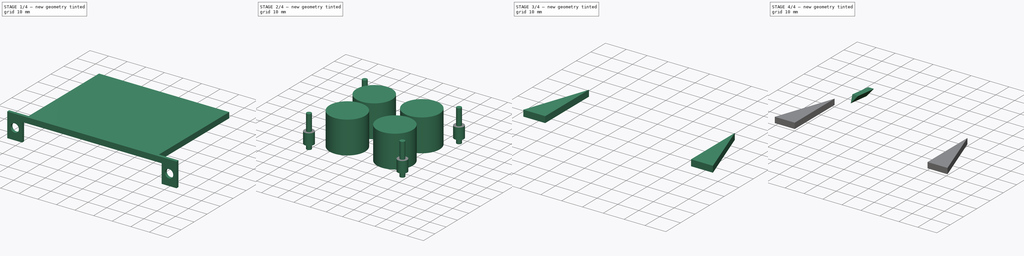
[diagram: build sequence overview — one tinted view per stage of 4, left to right]
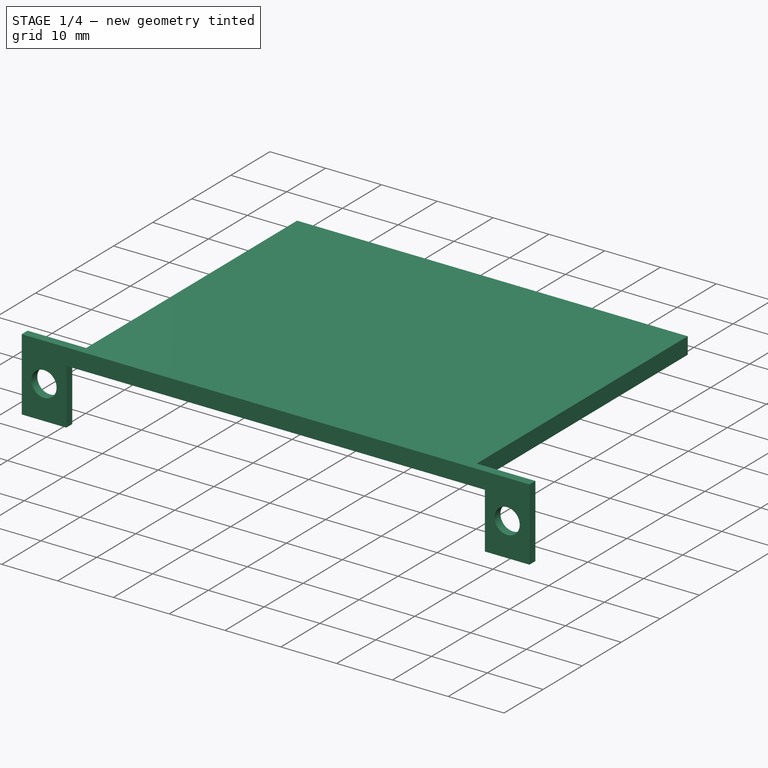
[diagram: stage 1 of 4 — iso view after this stage's code; geometry added in this stage tinted green]
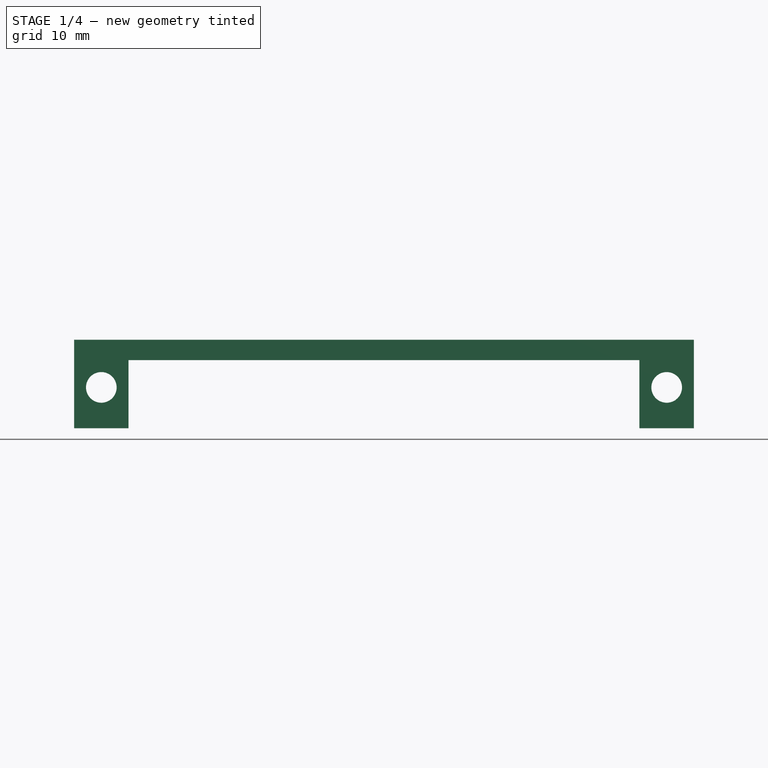
[diagram: stage 1 of 4 — front view after this stage's code; geometry added in this stage tinted green]
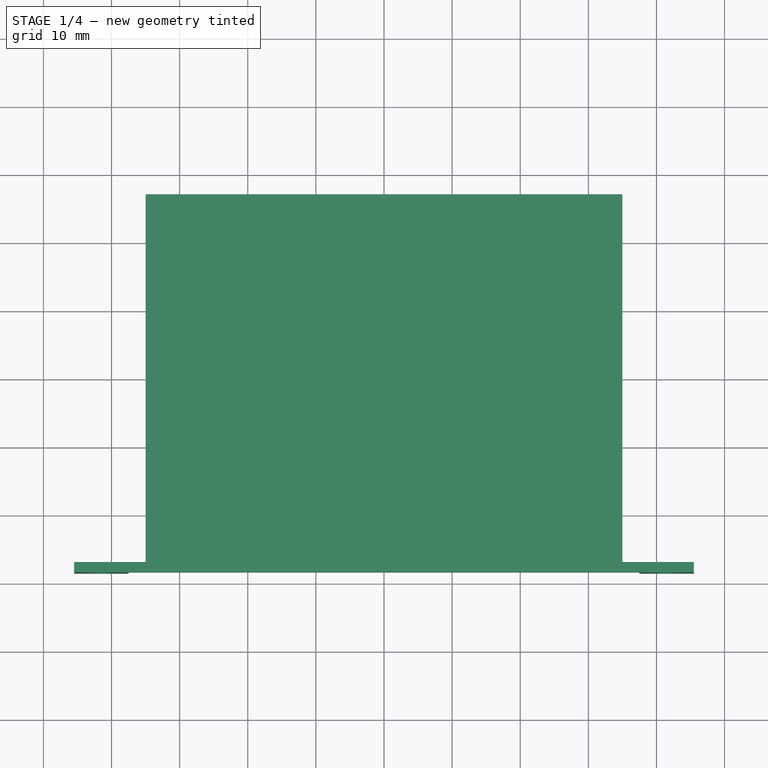
[diagram: stage 1 of 4 — top view after this stage's code; geometry added in this stage tinted green]
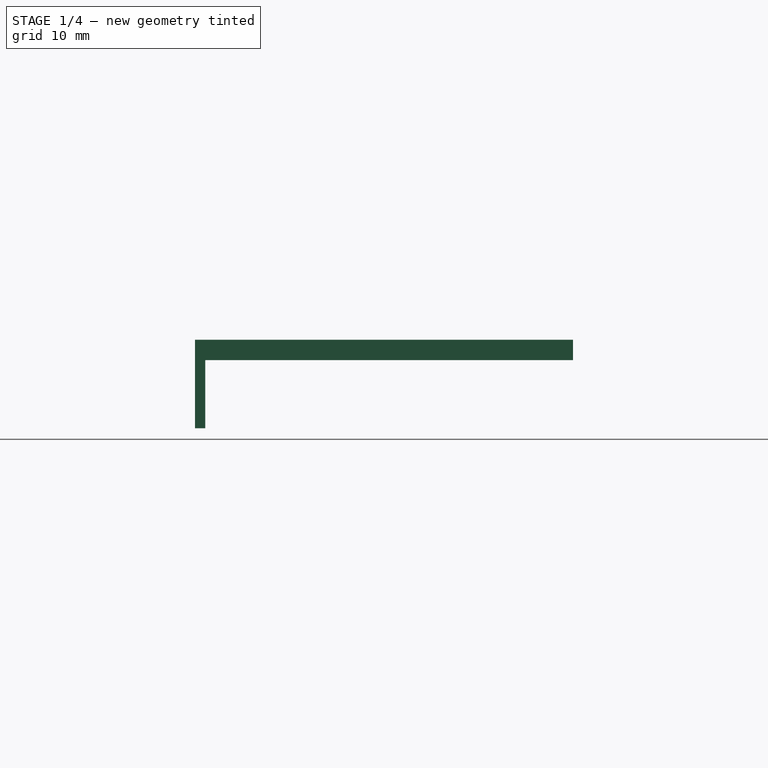
[diagram: stage 1 of 4 — right view after this stage's code; geometry added in this stage tinted green]
FCSTD DOCUMENT  (FreeCAD 0.20R29177 +426 (Git))
Label: 2023.05.12_RedPhone
License: All rights reserved
LicenseURL: http://en.wikipedia.org/wiki/All_rights_reserved
objects: Sketcher::SketchObject×7, Part::Extrusion×7, Part::MultiFuse×1, Part::Cut×1
note: 16 computed .brp shape members not serialized (recipe doc carries the construction recipe); baked Part::Feature solids carry a one-line shape summary decoded from their .brp

FEATURE [Sketcher::SketchObject] Sketch  label="Base_Sketch"
  FullyConstrained = true
  sketch-geometry (4):
    g0: LineSegment StartX=-35 StartY=27 StartZ=0 EndX=35 EndY=27 EndZ=0
    g1: LineSegment StartX=35 StartY=27 StartZ=0 EndX=35 EndY=-27 EndZ=0
    g2: LineSegment StartX=35 StartY=-27 StartZ=0 EndX=-35 EndY=-27 EndZ=0
    g3: LineSegment StartX=-35 StartY=-27 StartZ=0 EndX=-35 EndY=27 EndZ=0
  constraints (11):
    c: Coincident(g0,g1)
    c: Coincident(g1,g2)
    c: Coincident(g2,g3)
    c: Coincident(g3,g0)
    c: Horizontal(g0)
    c: Horizontal(g2)
    c: Vertical(g1)
    c: Vertical(g3)
    c: DistanceX(g2,g2) = 70
    c: DistanceY(g1,g1) = 54
    c: Symmetric(g0,g1,g-1)
FEATURE [Part::Extrusion] Extrude
  Base = -> Sketch
  Dir = (0,0,1)
  DirMode = 2
  FaceMakerClass = Part::FaceMakerBullseye
  LengthFwd = 3
  LengthRev = 0
  Solid = true
  Symmetric = false
FEATURE [Sketcher::SketchObject] Sketch003  label="FixationToScrewsSketch"
  ExternalGeometry = -> [Sketch]
  FullyConstrained = true
  MapMode = 5
  Placement = pos=(0,-27,0) rot=(1,0,0;1.5708rad)
  sketch-geometry (10):
    g0: LineSegment StartX=-45.5 StartY=3 StartZ=0 EndX=45.5 EndY=3 EndZ=0
    g1: LineSegment StartX=45.5 StartY=3 StartZ=0 EndX=45.5 EndY=-10 EndZ=0
    g2: LineSegment StartX=45.5 StartY=-10 StartZ=0 EndX=37.5 EndY=-10 EndZ=0
    g3: LineSegment StartX=37.5 StartY=-10 StartZ=0 EndX=37.5 EndY=0 EndZ=0
    g4: LineSegment StartX=37.5 StartY=0 StartZ=0 EndX=-37.5 EndY=0 EndZ=0
    g5: LineSegment StartX=-37.5 StartY=0 StartZ=0 EndX=-37.5 EndY=-10 EndZ=0
    g6: LineSegment StartX=-37.5 StartY=-10 StartZ=0 EndX=-45.5 EndY=-10 EndZ=0
    g7: LineSegment StartX=-45.5 StartY=-10 StartZ=0 EndX=-45.5 EndY=3 EndZ=0
    g8: Circle CenterX=41.5 CenterY=-4 CenterZ=0 NormalX=0 NormalY=0 NormalZ=1 AngleXU=0 Radius=2.25
    g9: Circle CenterX=-41.5 CenterY=-4 CenterZ=0 NormalX=0 NormalY=0 NormalZ=1 AngleXU=0 Radius=2.25
  constraints (28):
    c: Horizontal(g0)
    c: Coincident(g0,g1)
    c: Vertical(g1)
    c: Coincident(g1,g2)
    c: Coincident(g2,g3)
    c: Vertical(g3)
    c: Coincident(g3,g4)
    c: Horizontal(g4)
    c: Coincident(g4,g5)
    c: Vertical(g5)
    c: Coincident(g5,g6)
    c: Horizontal(g6)
    c: Coincident(g6,g7)
    c: Coincident(g7,g0)
    c: Vertical(g7)
    c: Horizontal(g2)
    c: DistanceX(g6,g6) = 8
    c: Equal(g6,g2)
    c: DistanceX(g4,g4) = 75
    c: DistanceY(g5,g5) = 10
    c: DistanceY(g3,g0) = 3
    c: DistanceY(g-3,g4) = 0
    c: Diameter(g8) = 4.5
    c: Equal(g8,g9)
    c: DistanceX(g9,g8) = 83
    c: Symmetric(g8,g9,g-2)
    c: DistanceY(g9,g4) = 4
    c: Symmetric(g2,g5,g-2)
FEATURE [Part::Extrusion] Extrude003
  Base = -> Sketch003
  Dir = (0,-1,2e-16)
  DirMode = 2
  FaceMakerClass = Part::FaceMakerBullseye
  LengthFwd = 1.5
  LengthRev = 0
  Solid = true
  Symmetric = false
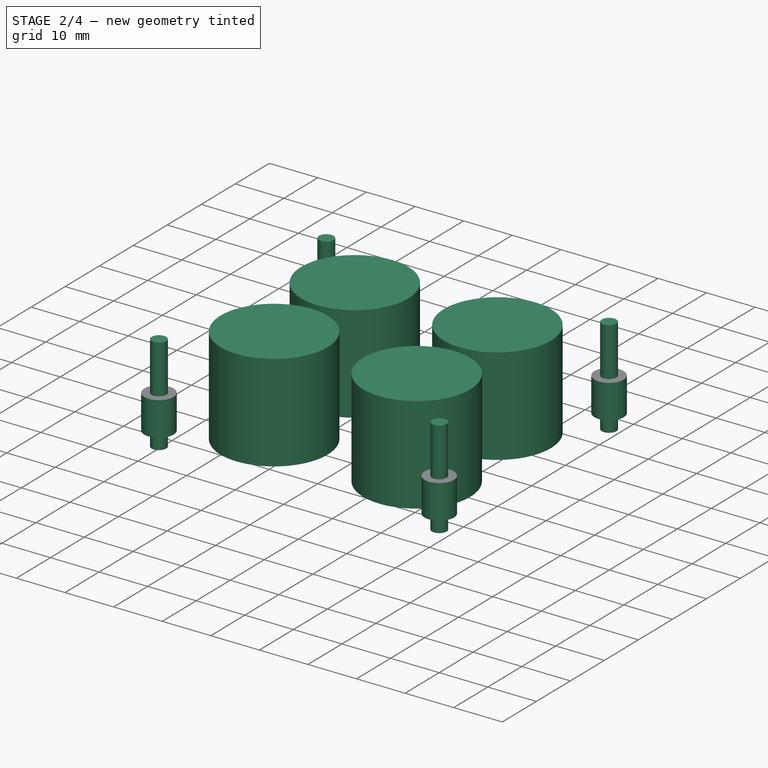
[diagram: stage 2 of 4 — iso view after this stage's code; geometry added in this stage tinted green]
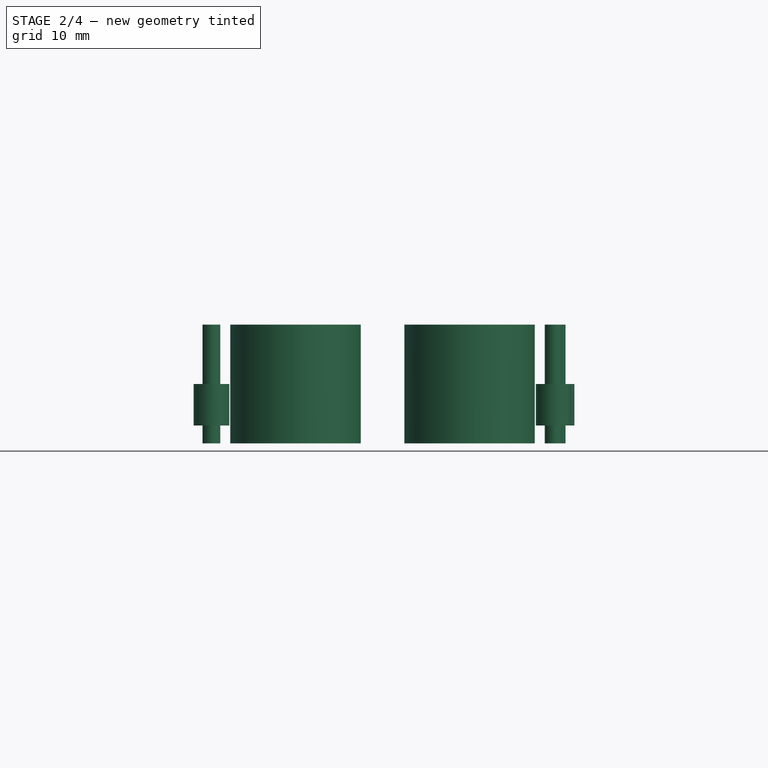
[diagram: stage 2 of 4 — front view after this stage's code; geometry added in this stage tinted green]
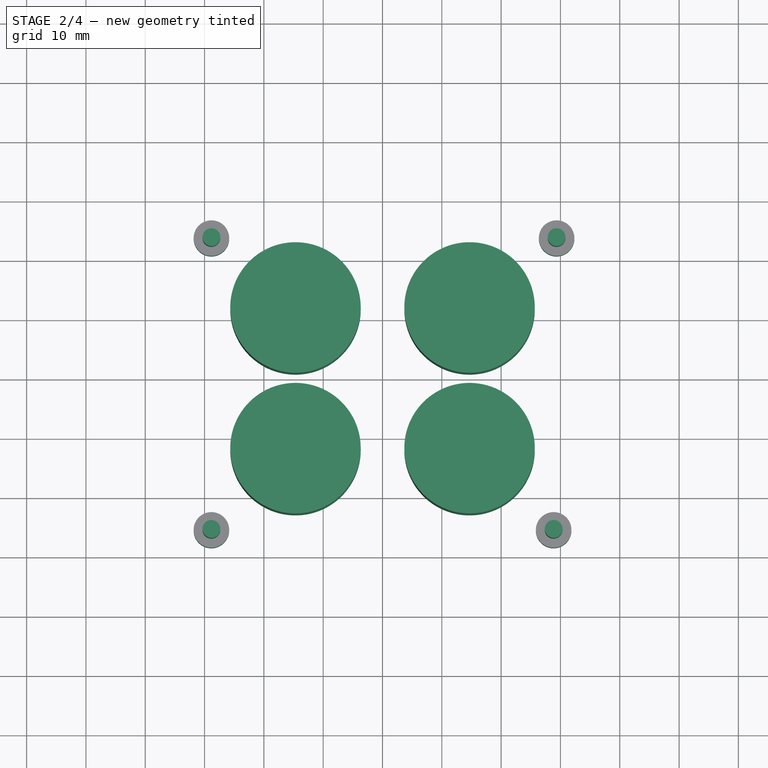
[diagram: stage 2 of 4 — top view after this stage's code; geometry added in this stage tinted green]
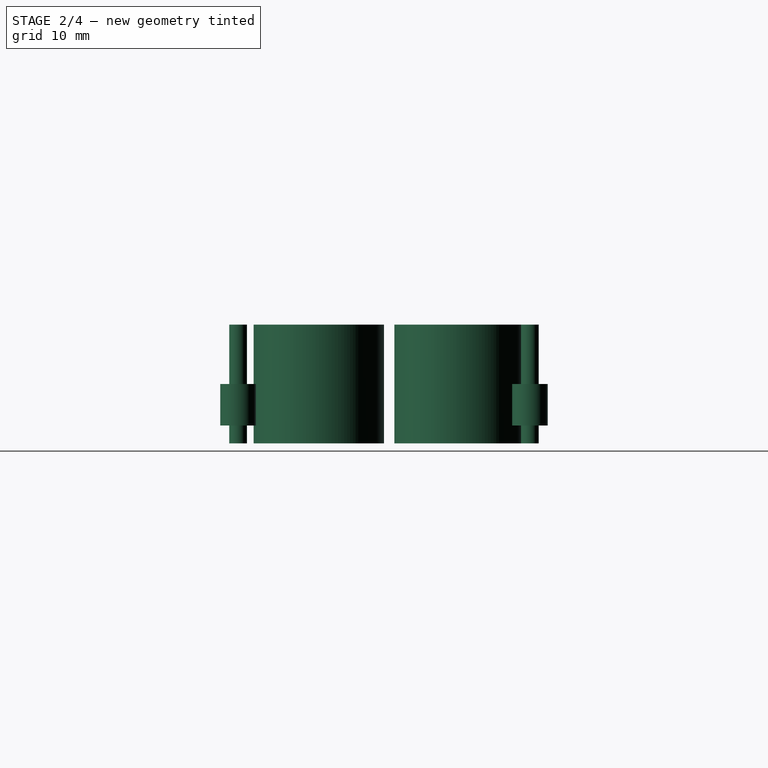
[diagram: stage 2 of 4 — right view after this stage's code; geometry added in this stage tinted green]
FEATURE [Sketcher::SketchObject] Sketch001  label="BoardSupports_Sketch"
  ExternalGeometry = -> [Extrude,Extrude003,Sketch003]
  FullyConstrained = false
  MapMode = 2
  Support = -> [Extrude]
  sketch-geometry (4):
    g0: Circle CenterX=-28.85 CenterY=23.726 CenterZ=0 NormalX=0 NormalY=0 NormalZ=1 AngleXU=0 Radius=3
    g1: Circle CenterX=29.35 CenterY=23.726 CenterZ=0 NormalX=0 NormalY=0 NormalZ=1 AngleXU=0 Radius=3
    g2: Circle CenterX=-28.85 CenterY=-25.474 CenterZ=0 NormalX=0 NormalY=0 NormalZ=1 AngleXU=0 Radius=3
    g3: Circle CenterX=28.85 CenterY=-25.474 CenterZ=0 NormalX=0 NormalY=0 NormalZ=1 AngleXU=0 Radius=3
  constraints (10):
    c: Diameter(g0) = 6
    c: Equal(g1,g0)
    c: Equal(g2,g0)
    c: Equal(g0,g3)
    c: DistanceX(g0,g1) = 58.2
    c: DistanceX(g2,g3) = 57.7
    c: DistanceY(g1,g0) = 0
    c: DistanceX(g0,g2) = 0
    c: DistanceY(g3,g1) = 49.2
    c: Symmetric(g3,g2,g-2)
FEATURE [Part::Extrusion] Extrude001
  Base = -> Sketch001
  Dir = (0,0,1)
  DirMode = 2
  FaceMakerClass = Part::FaceMakerBullseye
  LengthFwd = 0
  LengthRev = 7
  Solid = true
  Symmetric = false
FEATURE [Part::Extrusion] Extrude002
  Base = -> Sketch002
  Dir = (0,0,-1)
  DirMode = 2
  FaceMakerClass = Part::FaceMakerBullseye
  LengthFwd = 10
  LengthRev = 10
  Solid = true
  Symmetric = false
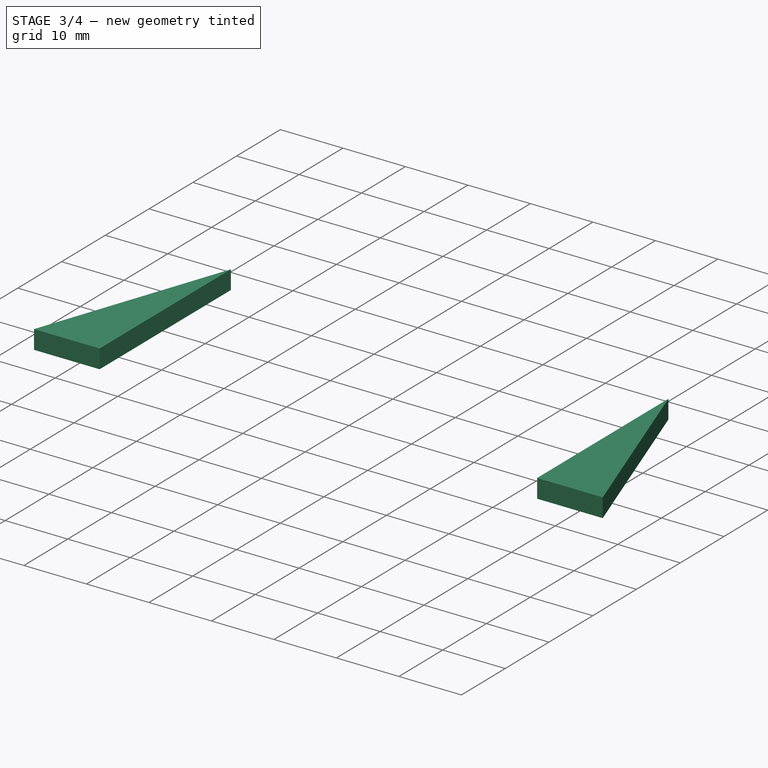
[diagram: stage 3 of 4 — iso view after this stage's code; geometry added in this stage tinted green]
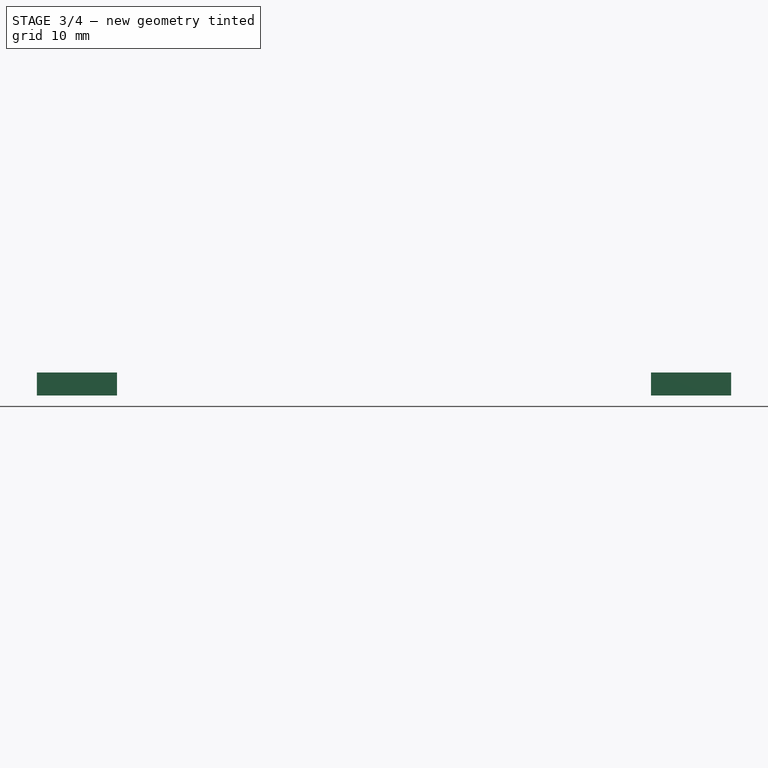
[diagram: stage 3 of 4 — front view after this stage's code; geometry added in this stage tinted green]
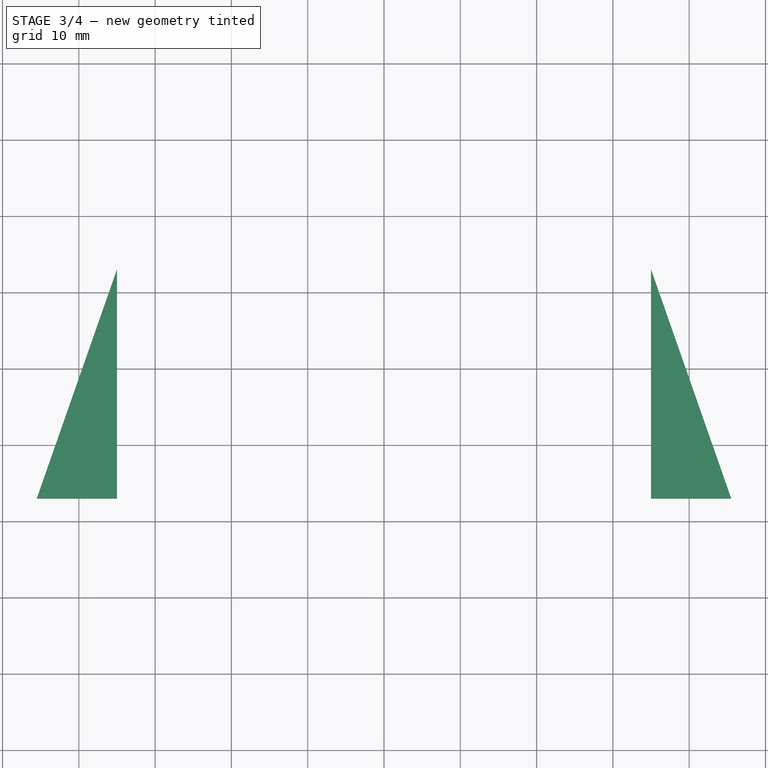
[diagram: stage 3 of 4 — top view after this stage's code; geometry added in this stage tinted green]
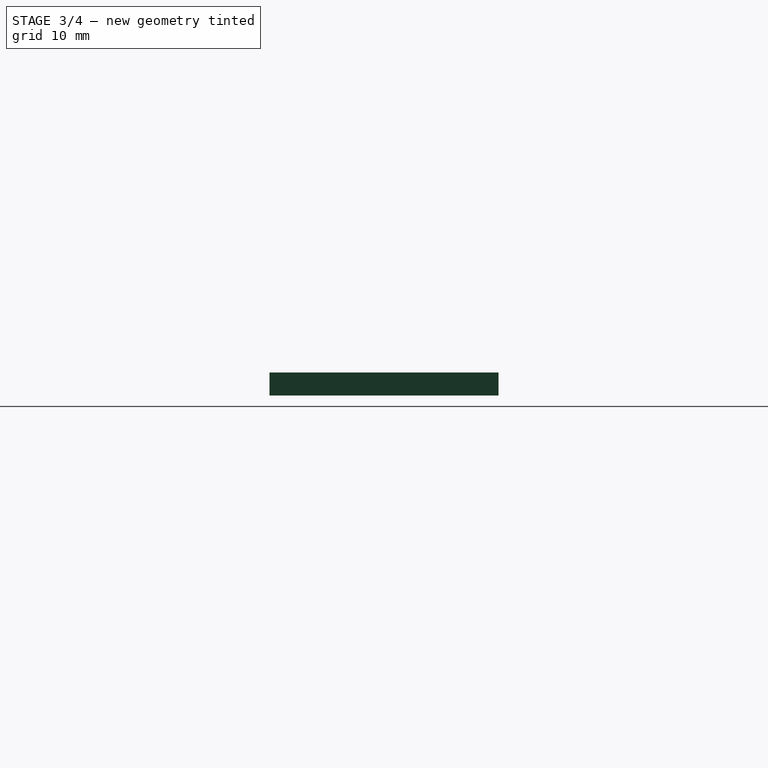
[diagram: stage 3 of 4 — right view after this stage's code; geometry added in this stage tinted green]
FEATURE [Sketcher::SketchObject] Sketch002  label="BoardSupportHoles_Sketch"
  ExternalGeometry = -> [Sketch001]
  FullyConstrained = true
  MapMode = 5
  Placement = pos=(0,0,0) rot=(1,0,0;3.14159rad)
  Support = -> [Extrude]
  sketch-geometry (8):
    g0: Circle CenterX=-28.85 CenterY=25.474 CenterZ=0 NormalX=0 NormalY=0 NormalZ=1 AngleXU=0 Radius=1.5
    g1: Circle CenterX=28.85 CenterY=25.474 CenterZ=0 NormalX=0 NormalY=0 NormalZ=1 AngleXU=0 Radius=1.5
    g2: Circle CenterX=-28.85 CenterY=-23.726 CenterZ=0 NormalX=0 NormalY=0 NormalZ=1 AngleXU=0 Radius=1.5
    g3: Circle CenterX=29.35 CenterY=-23.726 CenterZ=0 NormalX=0 NormalY=0 NormalZ=1 AngleXU=0 Radius=1.5
    g4: Circle CenterX=-14.675 CenterY=11.863 CenterZ=0 NormalX=0 NormalY=0 NormalZ=1 AngleXU=0 Radius=11
    g5: Circle CenterX=-14.675 CenterY=-11.863 CenterZ=0 NormalX=0 NormalY=0 NormalZ=1 AngleXU=0 Radius=11
    g6: Circle CenterX=14.675 CenterY=11.863 CenterZ=0 NormalX=0 NormalY=0 NormalZ=1 AngleXU=0 Radius=11
    g7: Circle CenterX=14.675 CenterY=-11.863 CenterZ=0 NormalX=0 NormalY=0 NormalZ=1 AngleXU=0 Radius=11
  constraints (17):
    c: Diameter(g0) = 3
    c: Equal(g1,g2)
    c: Equal(g2,g3)
    c: Equal(g3,g0)
    c: Coincident(g0,g-3)
    c: Coincident(g1,g-4)
    c: Coincident(g2,g-6)
    c: Coincident(g3,g-5)
    c: Diameter(g4) = 22
    c: Equal(g7,g4)
    c: Equal(g4,g6)
    c: Equal(g6,g5)
    c: DistanceX(g4,g5) = 0
    c: DistanceY(g4,g6) = 0
    c: Symmetric(g4,g7,g-1)
    c: Symmetric(g5,g6,g-1)
    c: Symmetric(g-1,g3,g7)
FEATURE [Part::MultiFuse] Fusion
  Shapes = -> [Extrude,Extrude001]
FEATURE [Part::Cut] Cut
  Base = -> Fusion
  Tool = -> Extrude002
FEATURE [Sketcher::SketchObject] Sketch007  label="SideDiagonals_Sketch"
  ExternalGeometry = -> [Cut,Extrude003]
  FullyConstrained = true
  MapMode = 5
  Placement = pos=(0,0,3) rot=(0,0,1;0rad)
  Support = -> [Cut]
  sketch-geometry (6):
    g0: LineSegment StartX=-35 StartY=3 StartZ=0 EndX=-35 EndY=-27 EndZ=0
    g1: LineSegment StartX=-35 StartY=-27 StartZ=0 EndX=-45.5 EndY=-27 EndZ=0
    g2: LineSegment StartX=-45.5 StartY=-27 StartZ=0 EndX=-35 EndY=3 EndZ=0
    g3: LineSegment StartX=35 StartY=3 StartZ=0 EndX=35 EndY=-27 EndZ=0
    g4: LineSegment StartX=35 StartY=-27 StartZ=0 EndX=45.5 EndY=-27 EndZ=0
    g5: LineSegment StartX=45.5 StartY=-27 StartZ=0 EndX=35 EndY=3 EndZ=0
  constraints (14):
    c: Coincident(g0,g1)
    c: Coincident(g1,g2)
    c: Coincident(g2,g0)
    c: Coincident(g0,g-3)
    c: Coincident(g1,g-4)
    c: PointOnObject(g0,g-3)
    c: Distance(g0) = 30
    c: Coincident(g3,g4)
    c: Coincident(g4,g5)
    c: Coincident(g5,g3)
    c: Coincident(g3,g-5)
    c: Coincident(g4,g-4)
    c: PointOnObject(g3,g-5)
    c: Distance(g3) = 30
FEATURE [Part::Extrusion] Extrude011
  Base = -> Sketch007
  Dir = (0,0,1)
  DirMode = 2
  FaceMakerClass = Part::FaceMakerBullseye
  LengthFwd = 0
  LengthRev = 3
  Solid = true
  Symmetric = false
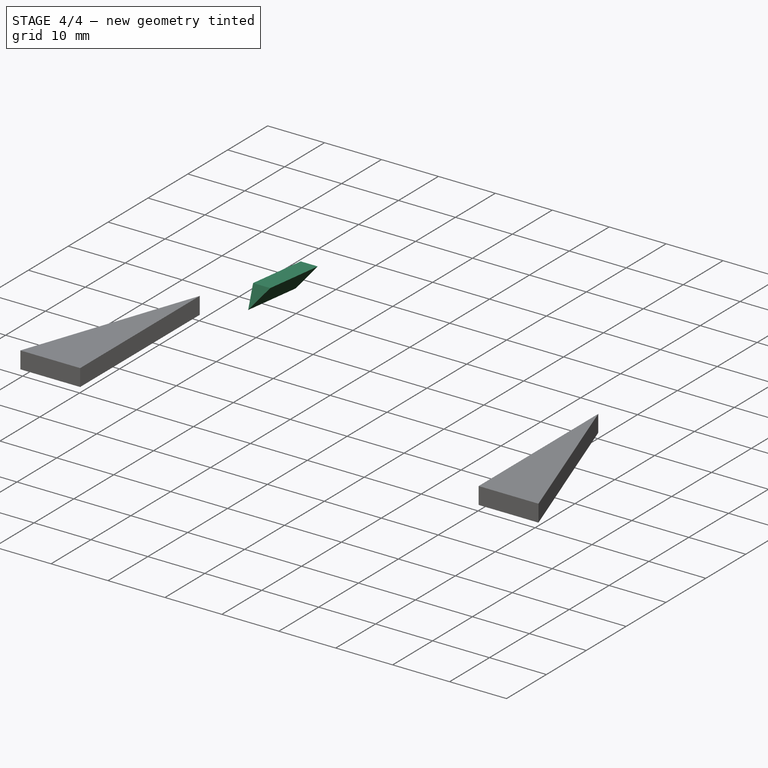
[diagram: stage 4 of 4 — iso view after this stage's code; geometry added in this stage tinted green]
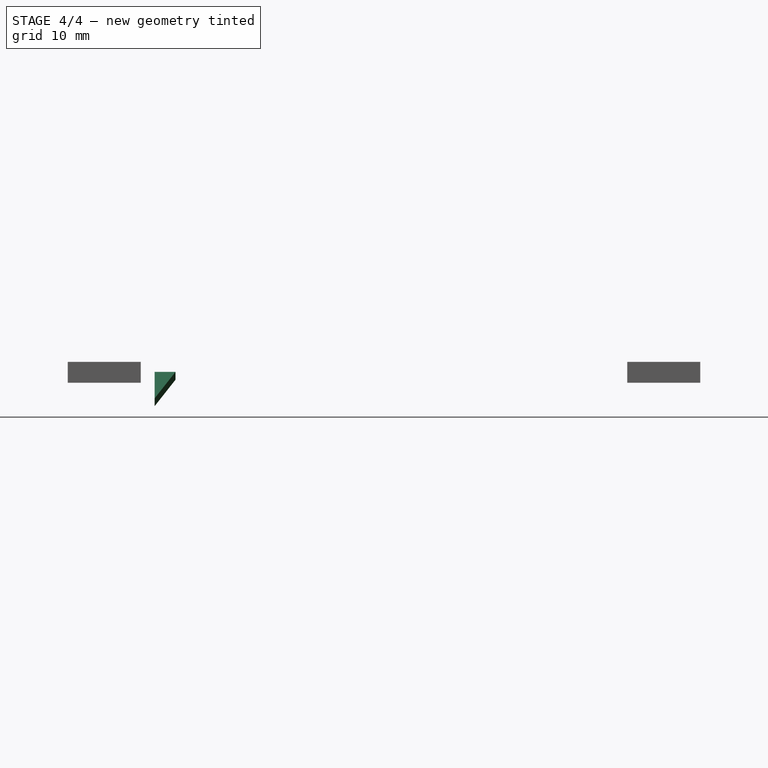
[diagram: stage 4 of 4 — front view after this stage's code; geometry added in this stage tinted green]
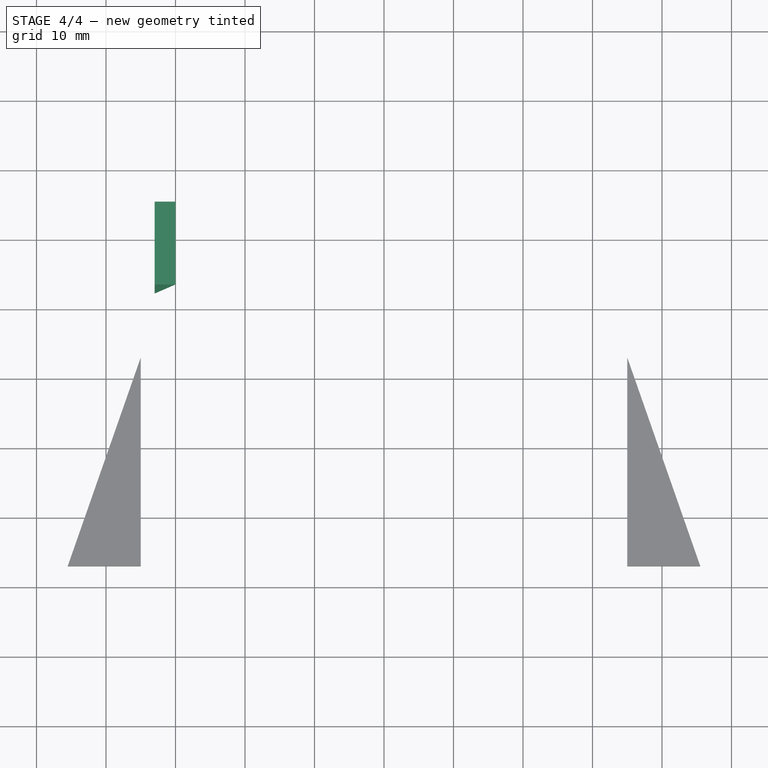
[diagram: stage 4 of 4 — top view after this stage's code; geometry added in this stage tinted green]
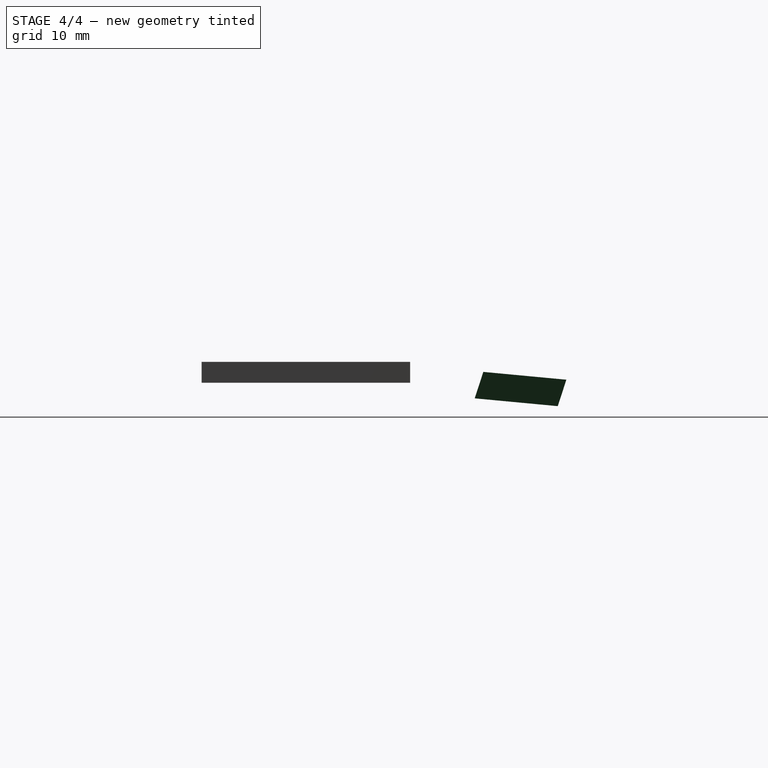
[diagram: stage 4 of 4 — right view after this stage's code; geometry added in this stage tinted green]
FEATURE [Sketcher::SketchObject] Sketch005  label="SideAttachment_Sketch"
  ExternalGeometry = -> [Sketch,Cut]
  FullyConstrained = false
  MapMode = 5
  Placement = pos=(-35,0,0) rot=(0.57735,-0.57735,-0.57735;2.0944rad)
  sketch-geometry (5):
    g0: ArcOfCircle CenterX=-13 CenterY=-15 CenterZ=0 NormalX=0 NormalY=0 NormalZ=1 AngleXU=0 Radius=4.65149 StartAngle=3.56934 EndAngle=6.72379
    g1: LineSegment StartX=-27 StartY=3 StartZ=0 EndX=-17.2324 EndY=-16.9295 EndZ=0
    g2: LineSegment StartX=-8.79277 StartY=-13.0162 StartZ=0 EndX=-14 EndY=3 EndZ=0
    g3: LineSegment StartX=-27 StartY=3 StartZ=0 EndX=-14 EndY=3 EndZ=0
    g4: Circle CenterX=-13 CenterY=-15 CenterZ=0 NormalX=0 NormalY=0 NormalZ=1 AngleXU=0 Radius=2.5
  constraints (11):
    c: Coincident(g2,g3)
    c: Coincident(g1,g3)
    c: Coincident(g0,g1)
    c: Coincident(g0,g2)
    c: PointOnObject(g2,g-4)
    c: Coincident(g0,g4)
    c: DistanceX(g0,g-4) = 40
    c: Distance(g3) = 13
    c: Coincident(g1,g-4)
    c: Diameter(g4) = 5
    c: DistanceY(g0,g-3) = 15
FEATURE [Part::Extrusion] Extrude007
  Base = -> Sketch005
  Dir = (-1,0,0)
  DirMode = 2
  FaceMakerClass = Part::FaceMakerBullseye
  LengthFwd = 1
  LengthRev = 2
  Solid = true
  Symmetric = false
FEATURE [Sketcher::SketchObject] Sketch006  label="FilletLateralFixation_Sketch"
  ExternalGeometry = -> [Extrude003,Extrude007]
  FullyConstrained = false
  MapMode = 5
  Placement = pos=(0,11.7795,-3.82978) rot=(1,0,0;1.25645rad)
  Support = -> [Extrude007]
  sketch-geometry (3):
    g0: LineSegment StartX=-33 StartY=5.66364 StartZ=0 EndX=-33 EndY=1.66364 EndZ=0
    g1: LineSegment StartX=-33 StartY=1.66364 StartZ=0 EndX=-30 EndY=5.66364 EndZ=0
    g2: LineSegment StartX=-30 StartY=5.66364 StartZ=0 EndX=-33 EndY=5.66364 EndZ=0
  constraints (8):
    c: Distance(g0) = 4
    c: Distance(g2) = 3
    c: Parallel(g2,g-5)
    c: Coincident(g1,g0)
    c: PointOnObject(g0,g-4)
    c: PointOnObject(g0,g-4)
    c: Coincident(g2,g0)
    c: Coincident(g2,g1)
FEATURE [Part::Extrusion] Extrude009
  Base = -> Sketch006
  Dir = (0,-5,0.47)
  DirMode = 0
  FaceMakerClass = Part::FaceMakerBullseye
  LengthFwd = 0
  LengthRev = 12
  Solid = true
  Symmetric = false
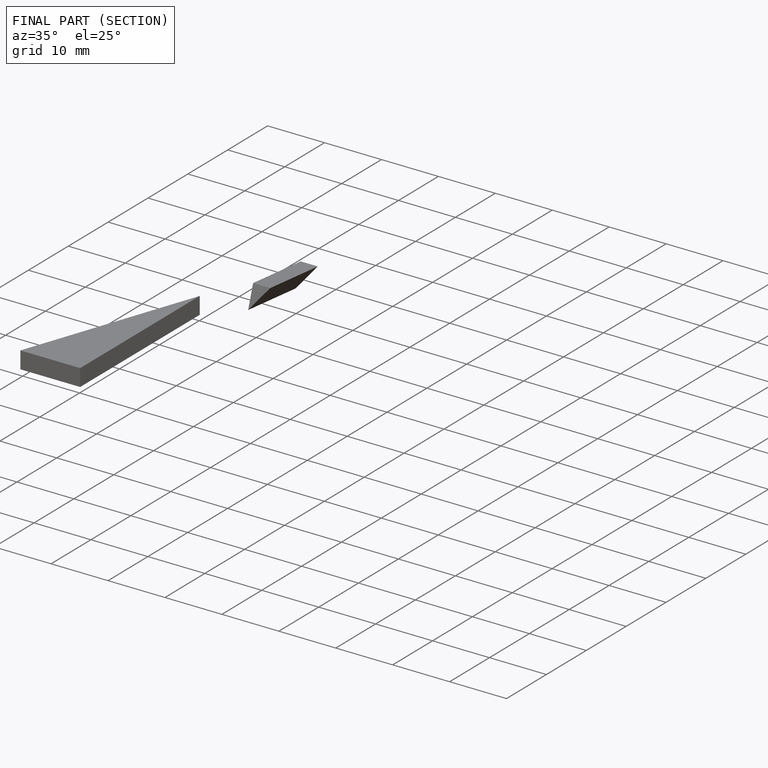
[diagram: finished part — half-section view (interior)]
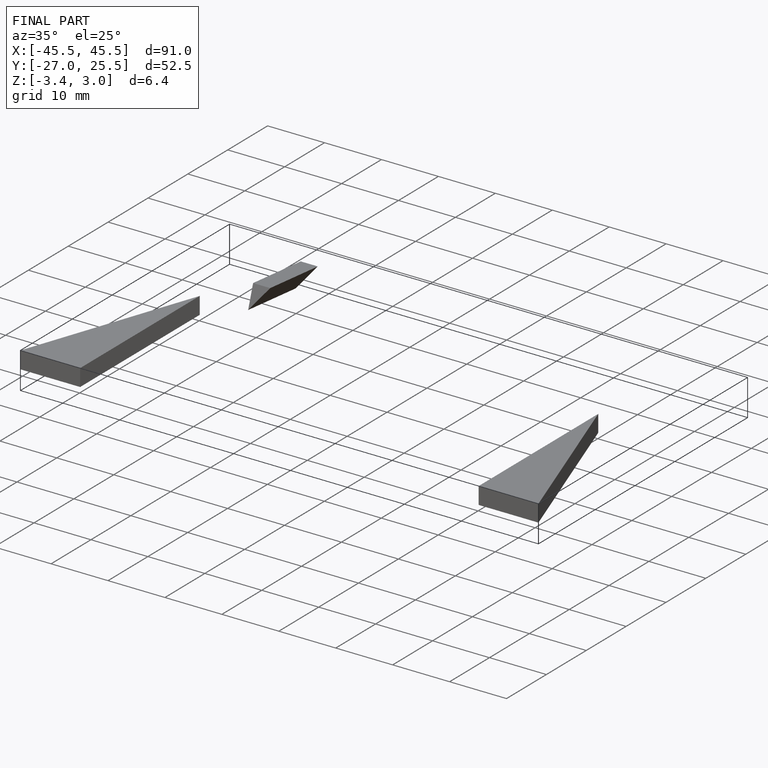
[diagram: finished part — iso view with bounding-box wireframe]
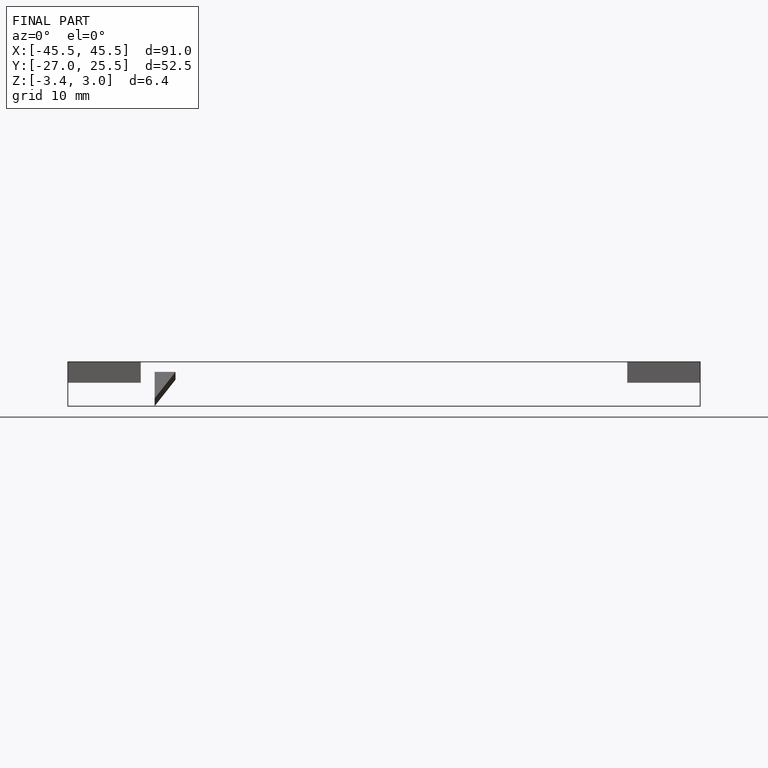
[diagram: finished part — front view with bounding-box wireframe]
